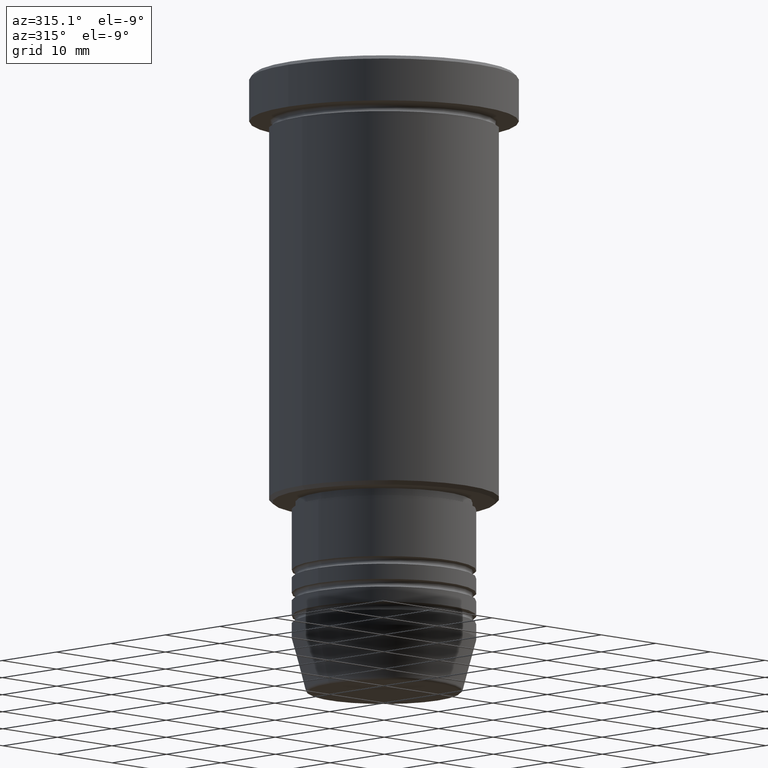
[diagram: clean part render]
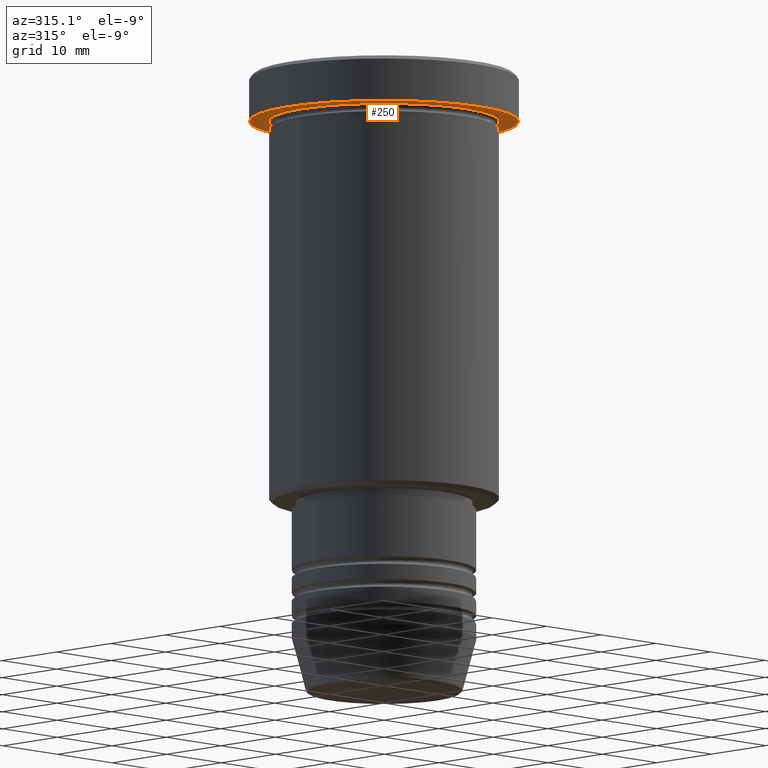
[diagram: same view with one face highlighted and labeled with its STEP entity id]
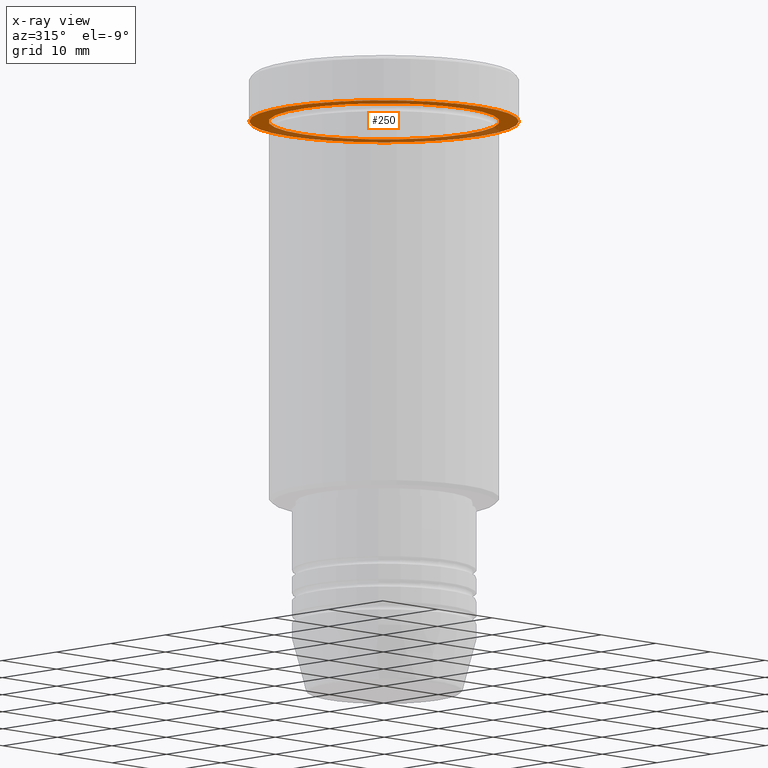
[diagram: x-ray of the same camera — body ghosted, the highlighted face saturated]
A machine part, auxiliary view. The second image highlights one B-rep face of the part: STEP entity #250.
The next image is the same camera in x-ray: the body ghosted, the highlighted face saturated — about 36% of this face is hidden behind the body in this view.
In plain terms, the highlighted planar face has unit normal (0, 0, -1).
Its self-contained STEP definition (entity closure, byte-faithful):
#24 = CIRCLE ( 'NONE', #175, 15.00000000000000000 ) ;
#34 = CARTESIAN_POINT ( 'NONE',  ( -15.00000000000000000, 0.000000000000000000, -5.999999999999994671 ) ) ;
#79 = AXIS2_PLACEMENT_3D ( 'NONE', #778, #775, #305 ) ;
#104 = ORIENTED_EDGE ( 'NONE', *, *, #503, .T. ) ;
#122 = EDGE_CURVE ( 'NONE', #130, #378, #24, .T. ) ;
#130 = VERTEX_POINT ( 'NONE', #34 ) ;
#146 = EDGE_LOOP ( 'NONE', ( #309, #702 ) ) ;
#175 = AXIS2_PLACEMENT_3D ( 'NONE', #327, #681, #206 ) ;
#191 = AXIS2_PLACEMENT_3D ( 'NONE', #693, #496, #845 ) ;
#206 = DIRECTION ( 'NONE',  ( -1.000000000000000000, 0.000000000000000000, 0.000000000000000000 ) ) ;
#223 = FACE_BOUND ( 'NONE', #581, .T. ) ;
#250 = ADVANCED_FACE ( 'NONE', ( #223, #1022 ), #569, .T. ) ;
#257 = CARTESIAN_POINT ( 'NONE',  ( -17.50000000000000000, 2.143131898507868248E-15, -5.999999999999995559 ) ) ;
#259 = DIRECTION ( 'NONE',  ( 0.000000000000000000, 0.000000000000000000, -1.000000000000000000 ) ) ;
#283 = CIRCLE ( 'NONE', #191, 15.00000000000000000 ) ;
#298 = EDGE_CURVE ( 'NONE', #753, #723, #487, .T. ) ;
#305 = DIRECTION ( 'NONE',  ( 1.000000000000000000, 0.000000000000000000, 0.000000000000000000 ) ) ;
#309 = ORIENTED_EDGE ( 'NONE', *, *, #497, .F. ) ;
#326 = DIRECTION ( 'NONE',  ( -0.000000000000000000, -0.000000000000000000, 1.000000000000000000 ) ) ;
#327 = CARTESIAN_POINT ( 'NONE',  ( 0.000000000000000000, 0.000000000000000000, -5.999999999999995559 ) ) ;
#378 = VERTEX_POINT ( 'NONE', #1010 ) ;
#438 = CARTESIAN_POINT ( 'NONE',  ( 0.000000000000000000, 0.000000000000000000, -5.999999999999995559 ) ) ;
#487 = CIRCLE ( 'NONE', #1108, 17.50000000000000000 ) ;
#496 = DIRECTION ( 'NONE',  ( -0.000000000000000000, -0.000000000000000000, 1.000000000000000000 ) ) ;
#497 = EDGE_CURVE ( 'NONE', #723, #753, #830, .T. ) ;
#503 = EDGE_CURVE ( 'NONE', #378, #130, #283, .T. ) ;
#569 = PLANE ( 'NONE',  #867 ) ;
#581 = EDGE_LOOP ( 'NONE', ( #749, #104 ) ) ;
#669 = CARTESIAN_POINT ( 'NONE',  ( 0.000000000000000000, 17.50000000000000000, -5.999999999999995559 ) ) ;
#681 = DIRECTION ( 'NONE',  ( -0.000000000000000000, -0.000000000000000000, 1.000000000000000000 ) ) ;
#693 = CARTESIAN_POINT ( 'NONE',  ( 0.000000000000000000, 0.000000000000000000, -5.999999999999995559 ) ) ;
#702 = ORIENTED_EDGE ( 'NONE', *, *, #298, .F. ) ;
#715 = DIRECTION ( 'NONE',  ( 1.000000000000000000, 0.000000000000000000, 0.000000000000000000 ) ) ;
#723 = VERTEX_POINT ( 'NONE', #751 ) ;
#749 = ORIENTED_EDGE ( 'NONE', *, *, #122, .T. ) ;
#751 = CARTESIAN_POINT ( 'NONE',  ( 17.50000000000000000, 0.000000000000000000, -5.999999999999995559 ) ) ;
#753 = VERTEX_POINT ( 'NONE', #257 ) ;
#770 = DIRECTION ( 'NONE',  ( -1.000000000000000000, 0.000000000000000000, -0.000000000000000000 ) ) ;
#775 = DIRECTION ( 'NONE',  ( -0.000000000000000000, -0.000000000000000000, 1.000000000000000000 ) ) ;
#778 = CARTESIAN_POINT ( 'NONE',  ( 0.000000000000000000, 0.000000000000000000, -5.999999999999995559 ) ) ;
#830 = CIRCLE ( 'NONE', #79, 17.50000000000000000 ) ;
#845 = DIRECTION ( 'NONE',  ( -1.000000000000000000, 0.000000000000000000, 0.000000000000000000 ) ) ;
#867 = AXIS2_PLACEMENT_3D ( 'NONE', #669, #259, #770 ) ;
#1010 = CARTESIAN_POINT ( 'NONE',  ( 15.00000000000000000, 1.836970198721029589E-15, -5.999999999999994671 ) ) ;
#1022 = FACE_OUTER_BOUND ( 'NONE', #146, .T. ) ;
#1108 = AXIS2_PLACEMENT_3D ( 'NONE', #438, #326, #715 ) ;